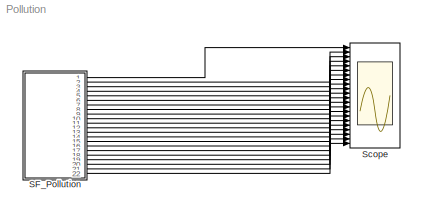
MODEL Pollution
KIND model
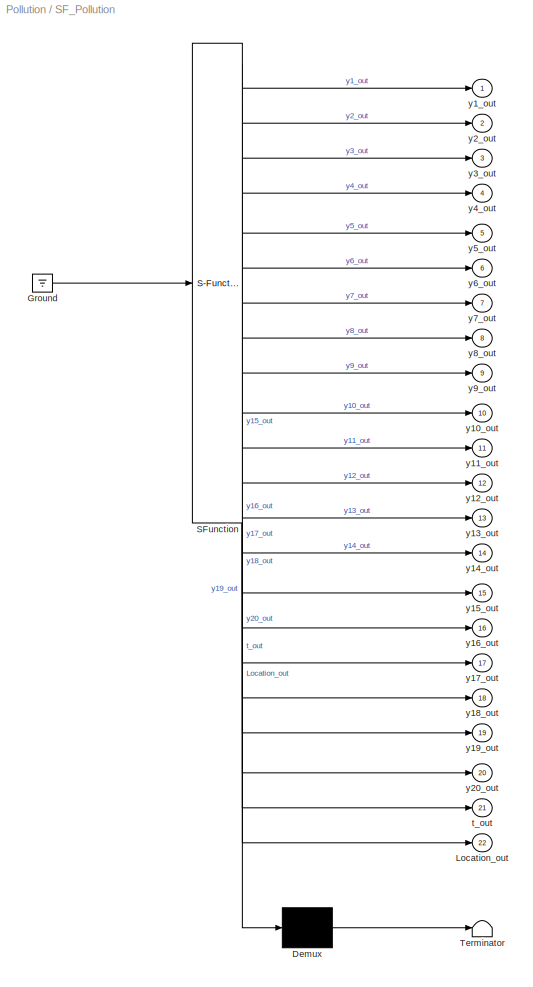
BLOCK [SubSystem] SF_Pollution
  ErrorFcn = Stateflow.Translate.translate
  PermitHierarchicalResolution = ExplicitOnly
  Ports = [0, 22]
  RequestExecContextInheritance = off
  SFBlockType = Chart
  SID = 1
  TreatAsAtomicUnit = on
BLOCK [Demux] SF_Pollution/ Demux 
  Outputs = 1
  Ports = [1, 1]
  SID = 1::100
BLOCK [Ground] SF_Pollution/ Ground 
  SID = 1::102
BLOCK [S-Function] SF_Pollution/ SFunction 
  EnableBusSupport = off
  FunctionName = sf_sfun
  PortCounts = [1 23]
  Ports = [1, 23]
  SFcnIsStateOwnerBlock = off
  SFunctionDeploymentMode = off
  SID = 1::99
  Tag = Stateflow S-Function 3
BLOCK [Terminator] SF_Pollution/ Terminator 
  SID = 1::101
BLOCK [Outport] SF_Pollution/Location_out
  IconDisplay = Port number
  Port = 22
  SID = 1::98
BLOCK [Outport] SF_Pollution/t_out
  IconDisplay = Port number
  Port = 21
  SID = 1::97
BLOCK [Outport] SF_Pollution/y10_out
  IconDisplay = Port number
  Port = 10
  SID = 1::86
BLOCK [Outport] SF_Pollution/y11_out
  IconDisplay = Port number
  Port = 11
  SID = 1::87
BLOCK [Outport] SF_Pollution/y12_out
  IconDisplay = Port number
  Port = 12
  SID = 1::88
BLOCK [Outport] SF_Pollution/y13_out
  IconDisplay = Port number
  Port = 13
  SID = 1::89
BLOCK [Outport] SF_Pollution/y14_out
  IconDisplay = Port number
  Port = 14
  SID = 1::90
BLOCK [Outport] SF_Pollution/y15_out
  IconDisplay = Port number
  Port = 15
  SID = 1::91
BLOCK [Outport] SF_Pollution/y16_out
  IconDisplay = Port number
  Port = 16
  SID = 1::92
BLOCK [Outport] SF_Pollution/y17_out
  IconDisplay = Port number
  Port = 17
  SID = 1::93
BLOCK [Outport] SF_Pollution/y18_out
  IconDisplay = Port number
  Port = 18
  SID = 1::94
BLOCK [Outport] SF_Pollution/y19_out
  IconDisplay = Port number
  Port = 19
  SID = 1::95
BLOCK [Outport] SF_Pollution/y1_out
  IconDisplay = Port number
  SID = 1::77
BLOCK [Outport] SF_Pollution/y20_out
  IconDisplay = Port number
  Port = 20
  SID = 1::96
BLOCK [Outport] SF_Pollution/y2_out
  IconDisplay = Port number
  Port = 2
  SID = 1::78
BLOCK [Outport] SF_Pollution/y3_out
  IconDisplay = Port number
  Port = 3
  SID = 1::79
BLOCK [Outport] SF_Pollution/y4_out
  IconDisplay = Port number
  Port = 4
  SID = 1::80
BLOCK [Outport] SF_Pollution/y5_out
  IconDisplay = Port number
  Port = 5
  SID = 1::81
BLOCK [Outport] SF_Pollution/y6_out
  IconDisplay = Port number
  Port = 6
  SID = 1::82
BLOCK [Outport] SF_Pollution/y7_out
  IconDisplay = Port number
  Port = 7
  SID = 1::83
BLOCK [Outport] SF_Pollution/y8_out
  IconDisplay = Port number
  Port = 8
  SID = 1::84
BLOCK [Outport] SF_Pollution/y9_out
  IconDisplay = Port number
  Port = 9
  SID = 1::85
BLOCK [Scope] Scope
  Floating = off
  NumInputPorts = 22
  Ports = [22]
  SID = 2
  ScopeSpecificationString = C++SS(StrPVP('Location','[188, 365, 512, 604]'),StrPVP('Open','off'),MxPVP('AxesTitles',54,'struct(''axes1'',''%<SignalLabel>'',''axes2'',''%<SignalLabel>'',''axes3'',''%<SignalLabel>'',''axes4'',''%<SignalLabel>'',''axes5'',''%<SignalLabel>'',''axes6'',''%<SignalLabel>'',''axes7'',''%<SignalLabel>'',''axes8'',''%<SignalLabel>'',''axes9'',''%<SignalLabel>'',''axes10'',''%<SignalLabel>'',''axes11''...<+512ch>
LINE SF_Pollution/ Demux :1 -> SF_Pollution/ Terminator :1
LINE SF_Pollution/ Ground :1 -> SF_Pollution/ SFunction :1
LINE SF_Pollution/ SFunction :1 -> SF_Pollution/ Demux :1
LINE SF_Pollution/ SFunction :10 -> SF_Pollution/y9_out:1
LINE SF_Pollution/ SFunction :11 -> SF_Pollution/y10_out:1
LINE SF_Pollution/ SFunction :12 -> SF_Pollution/y11_out:1
LINE SF_Pollution/ SFunction :13 -> SF_Pollution/y12_out:1
LINE SF_Pollution/ SFunction :14 -> SF_Pollution/y13_out:1
LINE SF_Pollution/ SFunction :15 -> SF_Pollution/y14_out:1
LINE SF_Pollution/ SFunction :16 -> SF_Pollution/y15_out:1
LINE SF_Pollution/ SFunction :17 -> SF_Pollution/y16_out:1
LINE SF_Pollution/ SFunction :18 -> SF_Pollution/y17_out:1
LINE SF_Pollution/ SFunction :19 -> SF_Pollution/y18_out:1
LINE SF_Pollution/ SFunction :2 -> SF_Pollution/y1_out:1
LINE SF_Pollution/ SFunction :20 -> SF_Pollution/y19_out:1
LINE SF_Pollution/ SFunction :21 -> SF_Pollution/y20_out:1
LINE SF_Pollution/ SFunction :22 -> SF_Pollution/t_out:1
LINE SF_Pollution/ SFunction :23 -> SF_Pollution/Location_out:1
LINE SF_Pollution/ SFunction :3 -> SF_Pollution/y2_out:1
LINE SF_Pollution/ SFunction :4 -> SF_Pollution/y3_out:1
LINE SF_Pollution/ SFunction :5 -> SF_Pollution/y4_out:1
LINE SF_Pollution/ SFunction :6 -> SF_Pollution/y5_out:1
LINE SF_Pollution/ SFunction :7 -> SF_Pollution/y6_out:1
LINE SF_Pollution/ SFunction :8 -> SF_Pollution/y7_out:1
LINE SF_Pollution/ SFunction :9 -> SF_Pollution/y8_out:1
LINE SF_Pollution:1 -> Scope:1
LINE SF_Pollution:10 -> Scope:10
LINE SF_Pollution:11 -> Scope:11
LINE SF_Pollution:12 -> Scope:12
LINE SF_Pollution:13 -> Scope:13
LINE SF_Pollution:14 -> Scope:14
LINE SF_Pollution:15 -> Scope:15
LINE SF_Pollution:16 -> Scope:16
LINE SF_Pollution:17 -> Scope:17
LINE SF_Pollution:18 -> Scope:18
LINE SF_Pollution:19 -> Scope:19
LINE SF_Pollution:2 -> Scope:2
LINE SF_Pollution:20 -> Scope:20
LINE SF_Pollution:21 -> Scope:21
LINE SF_Pollution:22 -> Scope:22
LINE SF_Pollution:3 -> Scope:3
LINE SF_Pollution:4 -> Scope:4
LINE SF_Pollution:5 -> Scope:5
LINE SF_Pollution:6 -> Scope:6
LINE SF_Pollution:7 -> Scope:7
LINE SF_Pollution:8 -> Scope:8
LINE SF_Pollution:9 -> Scope:9
CHART SF_Pollution states=1 transitions=1
  STATE_LABEL 'pollution\\ndu:\\ny1_dot = -k1 * y1 - k10 * y11 * y1 - k14 * y1 * y6 - k23 * y1 * y4 - k24 * y19 * y1 + k2 * y2 * y4 + k3 * y5 * y2 + k9 * y11 * y2 + k11 * y13 + k12 * y10 * y2 + k22 * y19 + k25 * y20;\\ny2_dot = -k2 * y2 * y4 - k3 * y5 * y2 - k9 * y11 * y2 - k12 * y10 * y2 + k1 * y1 + k21 * y19;\\ny3_dot = -k15 * y3 + k1 * y1 + k17 * y4 + k19 * y16 + k22 * y19;\\ny4_dot = -k2 * y2 * y4 - k16 * y4 - k1...<+1163ch>'
